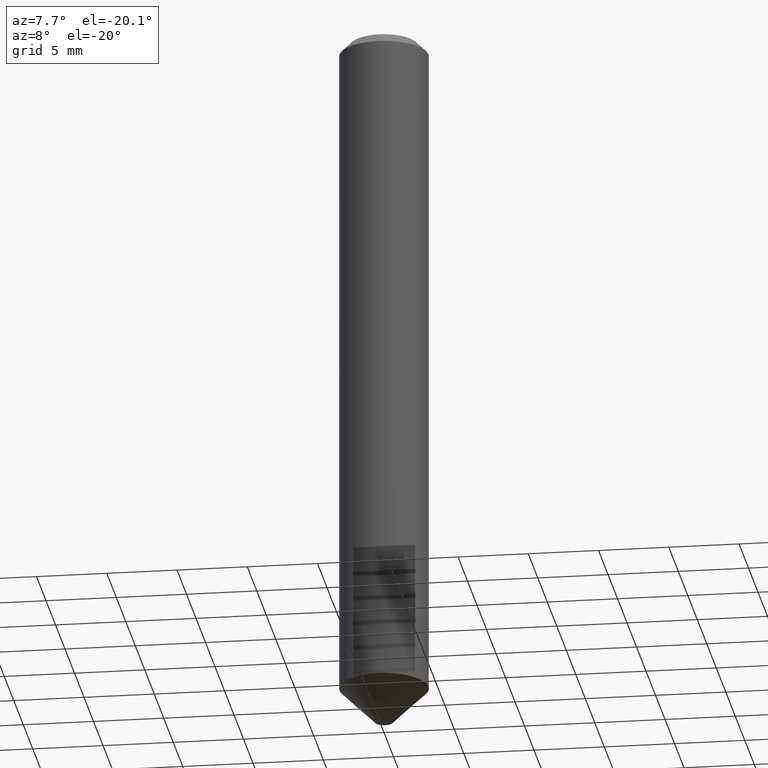
[diagram: clean part render]
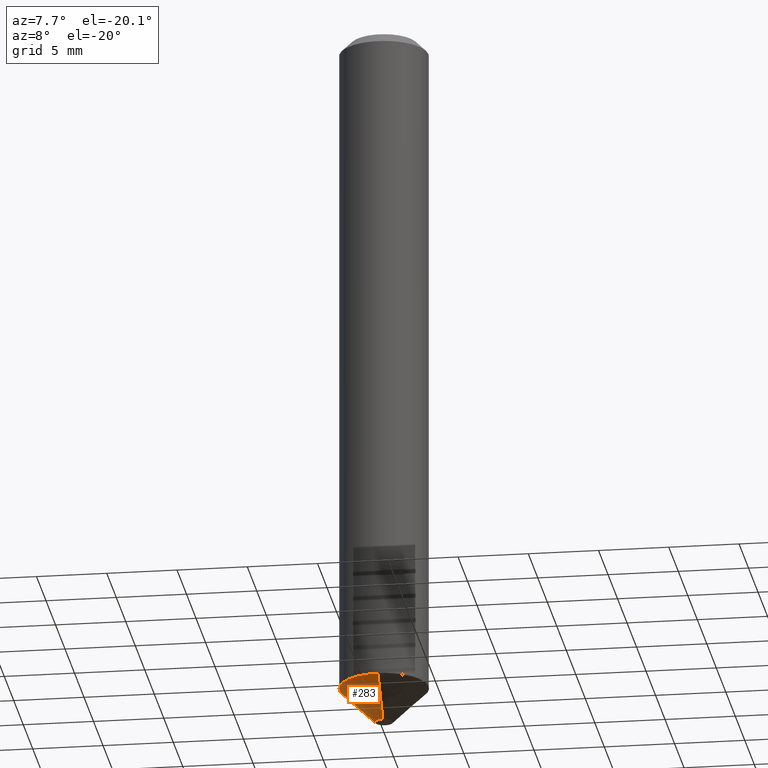
[diagram: same view with one face highlighted and labeled with its STEP entity id]
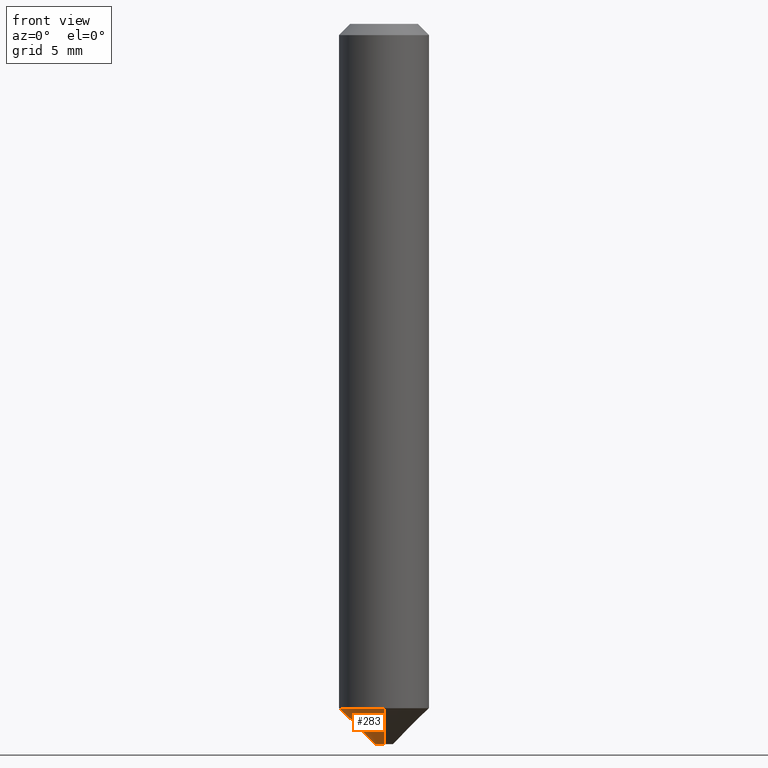
[diagram: same view with one face highlighted and labeled with its STEP entity id]
A machine part, auxiliary view. The second image highlights one B-rep face of the part: STEP entity #283.
A second angle (front view) of the same face is appended — the face is thin or edge-on in the first view.
In plain terms, the highlighted conical surface has half-angle 45.144 deg.
Its self-contained STEP definition (entity closure, byte-faithful):
#18 = ORIENTED_EDGE ( 'NONE', *, *, #314, .F. ) ;
#35 = CARTESIAN_POINT ( 'NONE',  ( -5.237222008264224744E-16, -0.02500000000000698885, -2.000000000000000444 ) ) ;
#49 = EDGE_CURVE ( 'NONE', #308, #79, #317, .T. ) ;
#53 = DIRECTION ( 'NONE',  ( 2.433702413238368813E-29, -3.508331483244413410E-15, -1.000000000000000000 ) ) ;
#59 = DIRECTION ( 'NONE',  ( -6.982962677686265922E-15, -1.000000000000000000, 4.370956789862820361E-15 ) ) ;
#79 = VERTEX_POINT ( 'NONE', #364 ) ;
#82 = CIRCLE ( 'NONE', #179, 0.02500000000000000486 ) ;
#91 = DIRECTION ( 'NONE',  ( -4.950059904243031787E-15, -0.7088767522788980147, 0.7053323685175109103 ) ) ;
#99 = VERTEX_POINT ( 'NONE', #35 ) ;
#120 = CARTESIAN_POINT ( 'NONE',  ( 4.889760973075597116E-29, -6.984647692126418776E-15, -2.000000000000000444 ) ) ;
#121 = ORIENTED_EDGE ( 'NONE', *, *, #274, .T. ) ;
#179 = AXIS2_PLACEMENT_3D ( 'NONE', #120, #222, #189 ) ;
#186 = FACE_OUTER_BOUND ( 'NONE', #327, .T. ) ;
#189 = DIRECTION ( 'NONE',  ( 6.982962677686266711E-15, 1.000000000000000000, 0.000000000000000000 ) ) ;
#192 = CARTESIAN_POINT ( 'NONE',  ( 5.329070518201229444E-16, 0.02499999999999302433, -2.000000000000000444 ) ) ;
#201 = VECTOR ( 'NONE', #412, 39.37007874015748143 ) ;
#222 = DIRECTION ( 'NONE',  ( 2.433702413238368813E-29, -3.508331483244413410E-15, -1.000000000000000000 ) ) ;
#258 = DIRECTION ( 'NONE',  ( 6.982962677686265922E-15, 1.000000000000000000, -4.370956789862820361E-15 ) ) ;
#274 = EDGE_CURVE ( 'NONE', #277, #79, #281, .T. ) ;
#277 = VERTEX_POINT ( 'NONE', #338 ) ;
#281 = CIRCLE ( 'NONE', #301, 0.1250000000000000278 ) ;
#282 = DIRECTION ( 'NONE',  ( -2.433702413238368813E-29, 3.508331483244413410E-15, 1.000000000000000000 ) ) ;
#283 = ADVANCED_FACE ( 'NONE', ( #186 ), #342, .T. ) ;
#287 = LINE ( 'NONE', #411, #343 ) ;
#301 = AXIS2_PLACEMENT_3D ( 'NONE', #379, #53, #258 ) ;
#308 = VERTEX_POINT ( 'NONE', #192 ) ;
#314 = EDGE_CURVE ( 'NONE', #99, #308, #82, .T. ) ;
#317 = LINE ( 'NONE', #345, #201 ) ;
#327 = EDGE_LOOP ( 'NONE', ( #380, #18, #367, #121 ) ) ;
#338 = CARTESIAN_POINT ( 'NONE',  ( -8.575622497213958886E-16, -0.1250000000000068001, -1.900499999999999412 ) ) ;
#342 = CONICAL_SURFACE ( 'NONE', #397, 0.1250000000000000278, 0.7879044238140346934 ) ;
#343 = VECTOR ( 'NONE', #91, 39.37007874015748143 ) ;
#345 = CARTESIAN_POINT ( 'NONE',  ( 8.881784197001717751E-16, 0.1249999999999933942, -1.900500000000000300 ) ) ;
#346 = CARTESIAN_POINT ( 'NONE',  ( 4.647607582958377980E-29, -6.635568709543598311E-15, -1.900499999999999856 ) ) ;
#364 = CARTESIAN_POINT ( 'NONE',  ( 8.728703347108291914E-16, 0.1249999999999932693, -1.900500000000000300 ) ) ;
#367 = ORIENTED_EDGE ( 'NONE', *, *, #383, .T. ) ;
#379 = CARTESIAN_POINT ( 'NONE',  ( 4.647607582958377980E-29, -6.635568709543598311E-15, -1.900499999999999856 ) ) ;
#380 = ORIENTED_EDGE ( 'NONE', *, *, #49, .F. ) ;
#383 = EDGE_CURVE ( 'NONE', #99, #277, #287, .T. ) ;
#397 = AXIS2_PLACEMENT_3D ( 'NONE', #346, #282, #59 ) ;
#411 = CARTESIAN_POINT ( 'NONE',  ( -8.728703347107369932E-16, -0.1250000000000066613, -1.900499999999999412 ) ) ;
#412 = DIRECTION ( 'NONE',  ( 5.036872268809829504E-15, 0.7088767522789028996, 0.7053323685175060254 ) ) ;